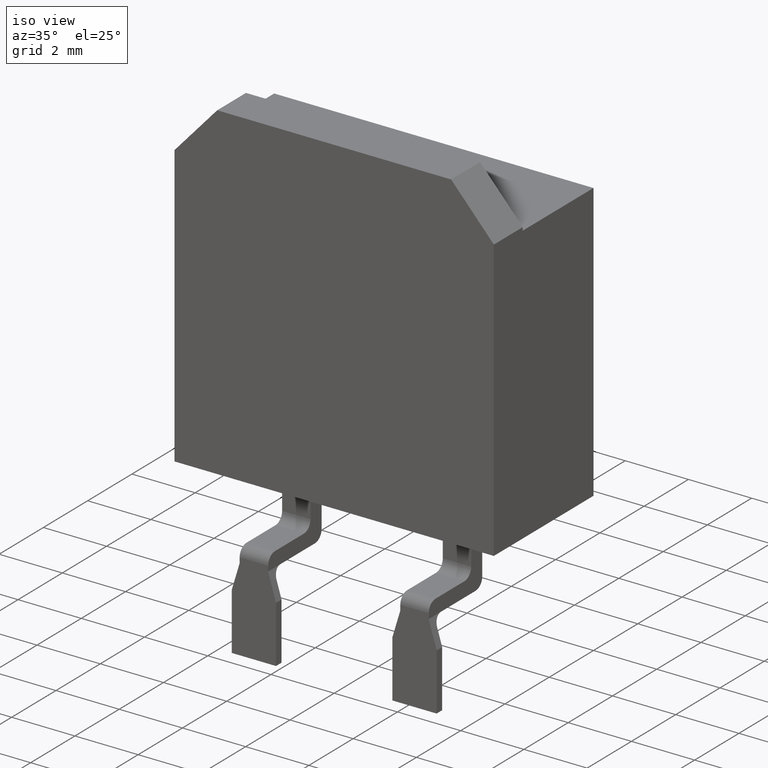
[diagram: clean part render]
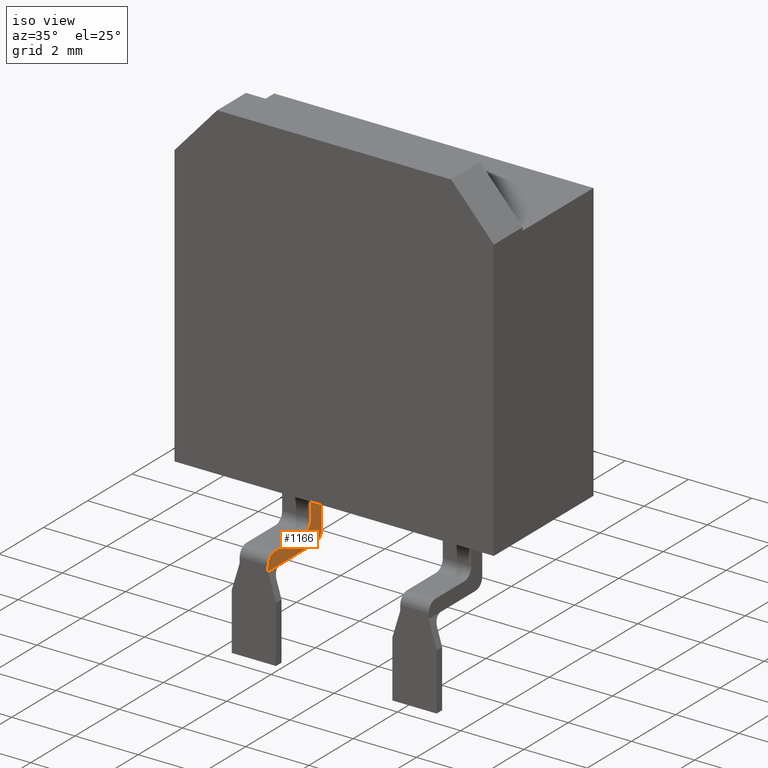
[diagram: same view with one face highlighted and labeled with its STEP entity id]
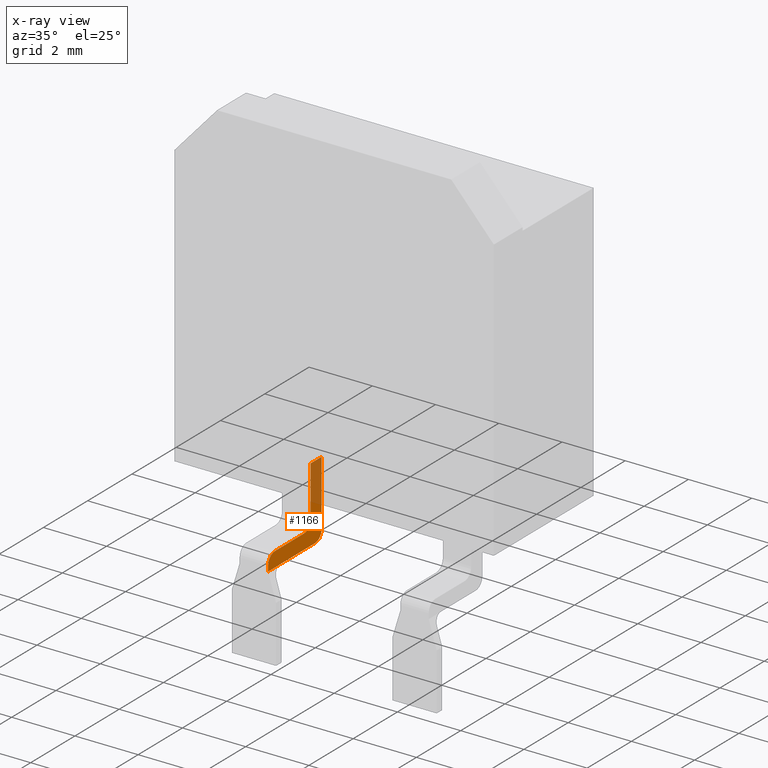
[diagram: x-ray of the same camera — body ghosted, the highlighted face saturated]
A machine part, iso view. The second image highlights one B-rep face of the part: STEP entity #1166.
The next image is the same camera in x-ray: the body ghosted, the highlighted face saturated — about 30% of this face is hidden behind the body in this view.
In plain terms, the highlighted planar face has unit normal (-1, 0, 0).
Its self-contained STEP definition (entity closure, byte-faithful):
#117=DIRECTION('',(0.E0,-1.E0,0.E0));
#118=VECTOR('',#117,5.E-1);
#119=CARTESIAN_POINT('',(-2.09E0,2.42E0,-4.4E0));
#120=LINE('',#119,#118);
#313=DIRECTION('',(0.E0,0.E0,-1.E0));
#314=VECTOR('',#313,1.59E0);
#315=CARTESIAN_POINT('',(-2.09E0,1.92E0,-4.4E0));
#316=LINE('',#315,#314);
#330=CARTESIAN_POINT('',(-2.09E0,1.62E0,-5.99E0));
#331=DIRECTION('',(1.E0,0.E0,0.E0));
#332=DIRECTION('',(0.E0,0.E0,-1.E0));
#333=AXIS2_PLACEMENT_3D('',#330,#331,#332);
#335=DIRECTION('',(0.E0,-1.E0,0.E0));
#336=VECTOR('',#335,5.5E-1);
#337=CARTESIAN_POINT('',(-2.09E0,5.5E-1,-6.757E0));
#338=LINE('',#337,#336);
#347=DIRECTION('',(0.E0,0.E0,1.E0));
#348=VECTOR('',#347,2.057E0);
#349=CARTESIAN_POINT('',(-2.09E0,2.42E0,-6.457E0));
#350=LINE('',#349,#348);
#356=CARTESIAN_POINT('',(-2.09E0,2.12E0,-6.457E0));
#357=DIRECTION('',(-1.E0,0.E0,0.E0));
#358=DIRECTION('',(0.E0,1.E0,0.E0));
#359=AXIS2_PLACEMENT_3D('',#356,#357,#358);
#369=DIRECTION('',(0.E0,1.E0,0.E0));
#370=VECTOR('',#369,1.57E0);
#371=CARTESIAN_POINT('',(-2.09E0,5.5E-1,-6.757E0));
#372=LINE('',#371,#370);
#423=DIRECTION('',(0.E0,0.E0,-1.E0));
#424=VECTOR('',#423,1.67E-1);
#425=CARTESIAN_POINT('',(-2.09E0,0.E0,-6.59E0));
#426=LINE('',#425,#424);
#440=CARTESIAN_POINT('',(-2.09E0,3.E-1,-6.59E0));
#441=DIRECTION('',(-1.E0,0.E0,0.E0));
#442=DIRECTION('',(0.E0,-1.E0,0.E0));
#443=AXIS2_PLACEMENT_3D('',#440,#441,#442);
#453=DIRECTION('',(0.E0,-1.E0,0.E0));
#454=VECTOR('',#453,1.32E0);
#455=CARTESIAN_POINT('',(-2.09E0,1.62E0,-6.29E0));
#456=LINE('',#455,#454);
#597=CARTESIAN_POINT('',(-2.09E0,1.92E0,-4.4E0));
#598=CARTESIAN_POINT('',(-2.09E0,1.92E0,-5.99E0));
#599=VERTEX_POINT('',#597);
#600=VERTEX_POINT('',#598);
#605=CARTESIAN_POINT('',(-2.09E0,1.62E0,-6.29E0));
#606=CARTESIAN_POINT('',(-2.09E0,3.E-1,-6.29E0));
#607=VERTEX_POINT('',#605);
#608=VERTEX_POINT('',#606);
#613=CARTESIAN_POINT('',(-2.09E0,0.E0,-6.757E0));
#614=VERTEX_POINT('',#613);
#615=CARTESIAN_POINT('',(-2.09E0,0.E0,-6.59E0));
#616=VERTEX_POINT('',#615);
#637=CARTESIAN_POINT('',(-2.09E0,5.5E-1,-6.757E0));
#638=CARTESIAN_POINT('',(-2.09E0,2.12E0,-6.757E0));
#639=VERTEX_POINT('',#637);
#640=VERTEX_POINT('',#638);
#645=CARTESIAN_POINT('',(-2.09E0,2.42E0,-6.457E0));
#646=CARTESIAN_POINT('',(-2.09E0,2.42E0,-4.4E0));
#647=VERTEX_POINT('',#645);
#648=VERTEX_POINT('',#646);
#1142=CARTESIAN_POINT('',(-2.09E0,2.42E0,-6.757E0));
#1143=DIRECTION('',(-1.E0,0.E0,0.E0));
#1144=DIRECTION('',(0.E0,0.E0,1.E0));
#1145=AXIS2_PLACEMENT_3D('',#1142,#1143,#1144);
#1146=PLANE('',#1145);
#1147=ORIENTED_EDGE('',*,*,#1095,.F.);
#1148=ORIENTED_EDGE('',*,*,#816,.F.);
#1150=ORIENTED_EDGE('',*,*,#1149,.F.);
#1152=ORIENTED_EDGE('',*,*,#1151,.T.);
#1154=ORIENTED_EDGE('',*,*,#1153,.F.);
#1156=ORIENTED_EDGE('',*,*,#1155,.T.);
#1158=ORIENTED_EDGE('',*,*,#1157,.F.);
#1160=ORIENTED_EDGE('',*,*,#1159,.T.);
#1162=ORIENTED_EDGE('',*,*,#1161,.F.);
#1163=ORIENTED_EDGE('',*,*,#1135,.T.);
#1164=EDGE_LOOP('',(#1147,#1148,#1150,#1152,#1154,#1156,#1158,#1160,#1162,
#1163));
#1165=FACE_OUTER_BOUND('',#1164,.F.);
#334=CIRCLE('',#333,3.E-1);
#360=CIRCLE('',#359,3.E-1);
#444=CIRCLE('',#443,3.E-1);
#816=EDGE_CURVE('',#648,#599,#120,.T.);
#1095=EDGE_CURVE('',#599,#600,#316,.T.);
#1135=EDGE_CURVE('',#607,#600,#334,.T.);
#1149=EDGE_CURVE('',#647,#648,#350,.T.);
#1151=EDGE_CURVE('',#647,#640,#360,.T.);
#1153=EDGE_CURVE('',#639,#640,#372,.T.);
#1155=EDGE_CURVE('',#639,#614,#338,.T.);
#1157=EDGE_CURVE('',#616,#614,#426,.T.);
#1159=EDGE_CURVE('',#616,#608,#444,.T.);
#1161=EDGE_CURVE('',#607,#608,#456,.T.);
#1166=ADVANCED_FACE('',(#1165),#1146,.F.);